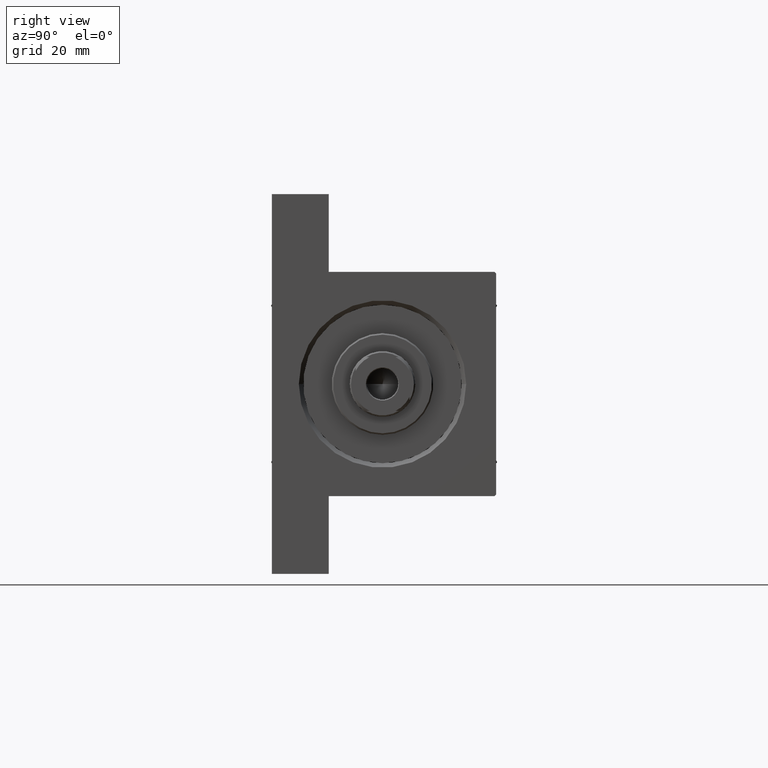
[diagram: clean part render]
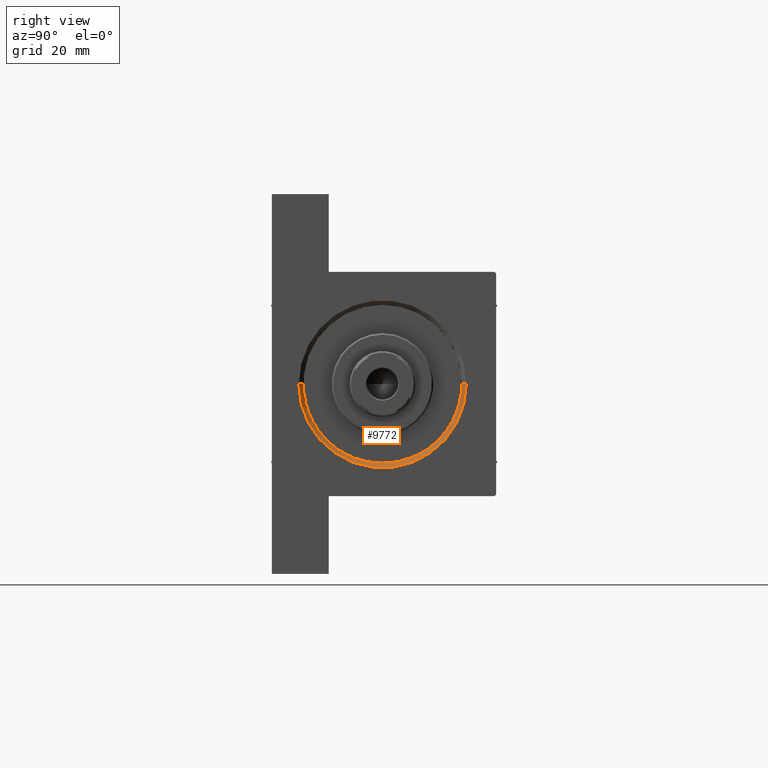
[diagram: same view with one face highlighted and labeled with its STEP entity id]
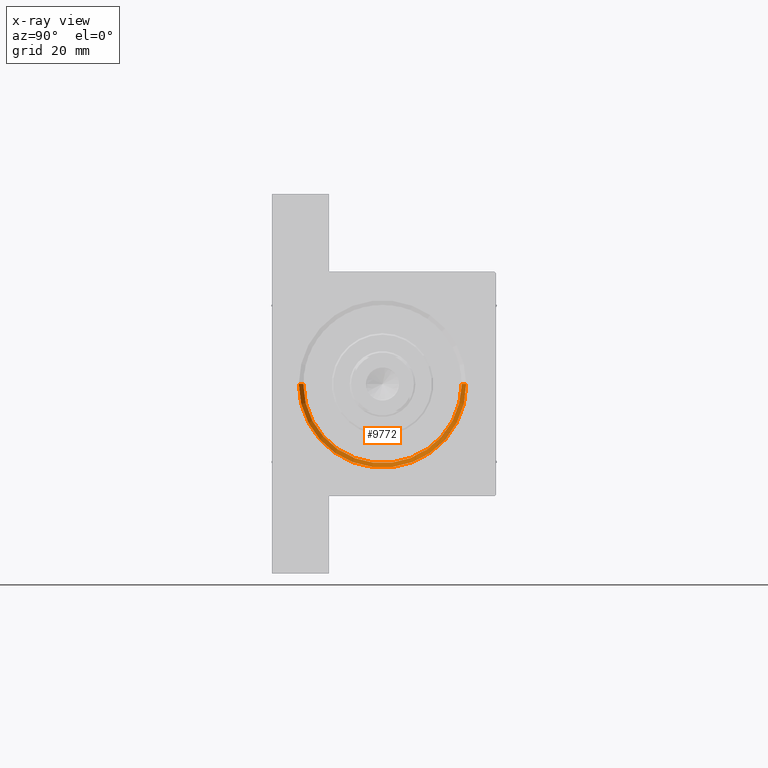
[diagram: x-ray of the same camera — body ghosted, the highlighted face saturated]
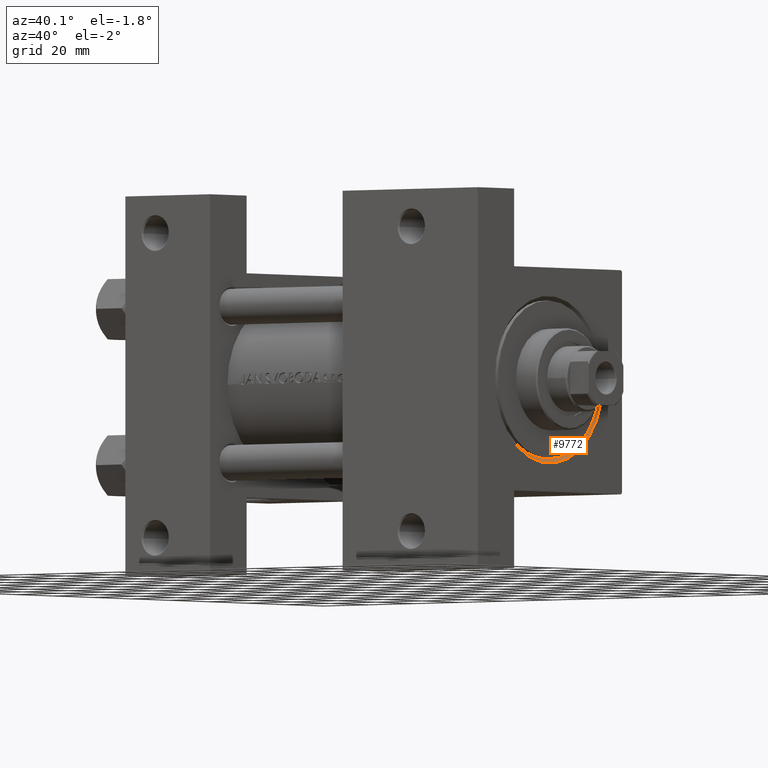
[diagram: same view with one face highlighted and labeled with its STEP entity id]
A machine part, right view. The second image highlights one B-rep face of the part: STEP entity #9772.
The next image is the same camera in x-ray: the body ghosted, the highlighted face saturated — about 0% of this face is hidden behind the body in this view.
A second angle (auxiliary view) of the same face is appended — the face is thin or edge-on in the first view.
In plain terms, the highlighted conical surface has half-angle 45 deg.
Its self-contained STEP definition (entity closure, byte-faithful):
#1073 = CARTESIAN_POINT ( 'NONE',  ( 152.5000000000000568, 0.000000000000000000, -27.00000000000000355 ) ) ;
#1120 = VERTEX_POINT ( 'NONE', #28461 ) ;
#1288 = EDGE_CURVE ( 'NONE', #36648, #1120, #20487, .T. ) ;
#3426 = FACE_OUTER_BOUND ( 'NONE', #3674, .T. ) ;
#3674 = EDGE_LOOP ( 'NONE', ( #36122, #7322, #21371, #23523 ) ) ;
#6226 = CONICAL_SURFACE ( 'NONE', #21611, 26.50000000000000355, 0.7853981633974644883 ) ;
#7322 = ORIENTED_EDGE ( 'NONE', *, *, #39632, .F. ) ;
#8375 = VECTOR ( 'NONE', #44851, 1000.000000000000114 ) ;
#9772 = ADVANCED_FACE ( 'NONE', ( #3426 ), #6226, .F. ) ;
#11035 = DIRECTION ( 'NONE',  ( 0.000000000000000000, 0.000000000000000000, 1.000000000000000000 ) ) ;
#11591 = CARTESIAN_POINT ( 'NONE',  ( 154.0000000000000000, 0.000000000000000000, -28.49999999999999645 ) ) ;
#14504 = CARTESIAN_POINT ( 'NONE',  ( 152.5000000000000568, 0.000000000000000000, -0.5000000000000004441 ) ) ;
#15781 = DIRECTION ( 'NONE',  ( 1.000000000000000000, 0.000000000000000000, 0.000000000000000000 ) ) ;
#16012 = DIRECTION ( 'NONE',  ( 0.000000000000000000, 0.000000000000000000, 1.000000000000000000 ) ) ;
#16079 = CARTESIAN_POINT ( 'NONE',  ( 152.5000000000000568, 0.000000000000000000, -27.00000000000000355 ) ) ;
#16820 = CIRCLE ( 'NONE', #25259, 26.50000000000000355 ) ;
#20090 = CARTESIAN_POINT ( 'NONE',  ( 152.5000000000000568, 0.000000000000000000, -0.5000000000000004441 ) ) ;
#20487 = LINE ( 'NONE', #42133, #25141 ) ;
#21371 = ORIENTED_EDGE ( 'NONE', *, *, #38703, .T. ) ;
#21611 = AXIS2_PLACEMENT_3D ( 'NONE', #14504, #29624, #44285 ) ;
#22573 = DIRECTION ( 'NONE',  ( -1.000000000000000000, -0.000000000000000000, 0.000000000000000000 ) ) ;
#22971 = LINE ( 'NONE', #1073, #8375 ) ;
#23523 = ORIENTED_EDGE ( 'NONE', *, *, #31478, .F. ) ;
#25141 = VECTOR ( 'NONE', #31559, 1000.000000000000114 ) ;
#25259 = AXIS2_PLACEMENT_3D ( 'NONE', #20090, #15781, #16012 ) ;
#28461 = CARTESIAN_POINT ( 'NONE',  ( 154.0000000000000000, 3.429011037612588881E-15, 27.49999999999999645 ) ) ;
#29624 = DIRECTION ( 'NONE',  ( 1.000000000000000000, 0.000000000000000000, 0.000000000000000000 ) ) ;
#31478 = EDGE_CURVE ( 'NONE', #1120, #35324, #47394, .T. ) ;
#31559 = DIRECTION ( 'NONE',  ( 0.7071067811865361374, 8.659560562355073374E-17, 0.7071067811865588970 ) ) ;
#32037 = AXIS2_PLACEMENT_3D ( 'NONE', #33412, #22573, #11035 ) ;
#33412 = CARTESIAN_POINT ( 'NONE',  ( 154.0000000000000000, 0.000000000000000000, -0.5000000000000004441 ) ) ;
#35324 = VERTEX_POINT ( 'NONE', #11591 ) ;
#36122 = ORIENTED_EDGE ( 'NONE', *, *, #1288, .F. ) ;
#36648 = VERTEX_POINT ( 'NONE', #42437 ) ;
#37575 = VERTEX_POINT ( 'NONE', #16079 ) ;
#38703 = EDGE_CURVE ( 'NONE', #37575, #35324, #22971, .T. ) ;
#39632 = EDGE_CURVE ( 'NONE', #37575, #36648, #16820, .T. ) ;
#42133 = CARTESIAN_POINT ( 'NONE',  ( 152.5000000000000568, 3.245314017740486554E-15, 26.00000000000000355 ) ) ;
#42437 = CARTESIAN_POINT ( 'NONE',  ( 152.5000000000000568, 3.245314017740486554E-15, 26.00000000000000355 ) ) ;
#44285 = DIRECTION ( 'NONE',  ( 0.000000000000000000, 0.000000000000000000, -1.000000000000000000 ) ) ;
#44851 = DIRECTION ( 'NONE',  ( 0.7071067811865361374, 0.000000000000000000, -0.7071067811865588970 ) ) ;
#47394 = CIRCLE ( 'NONE', #32037, 27.99999999999999645 ) ;